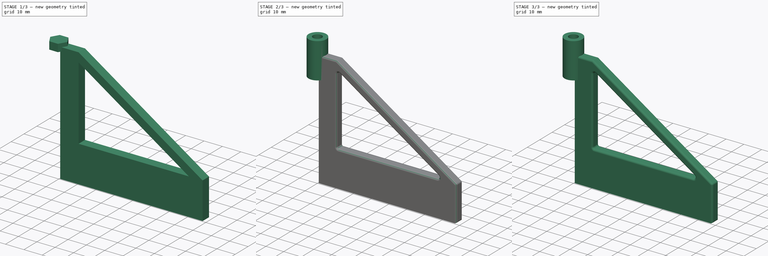
[diagram: build sequence overview — one tinted view per stage of 3, left to right]
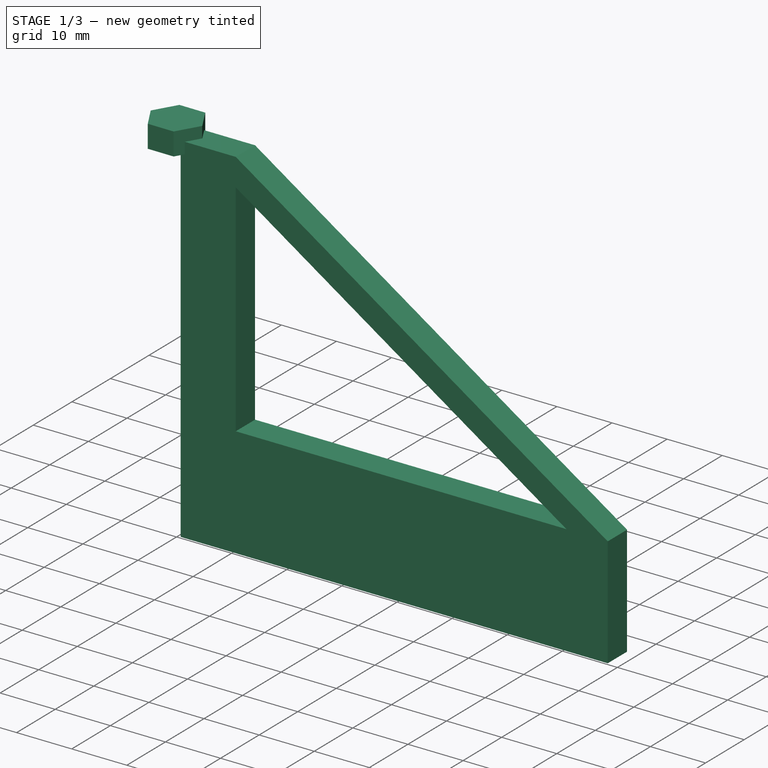
[diagram: stage 1 of 3 — iso view after this stage's code; geometry added in this stage tinted green]
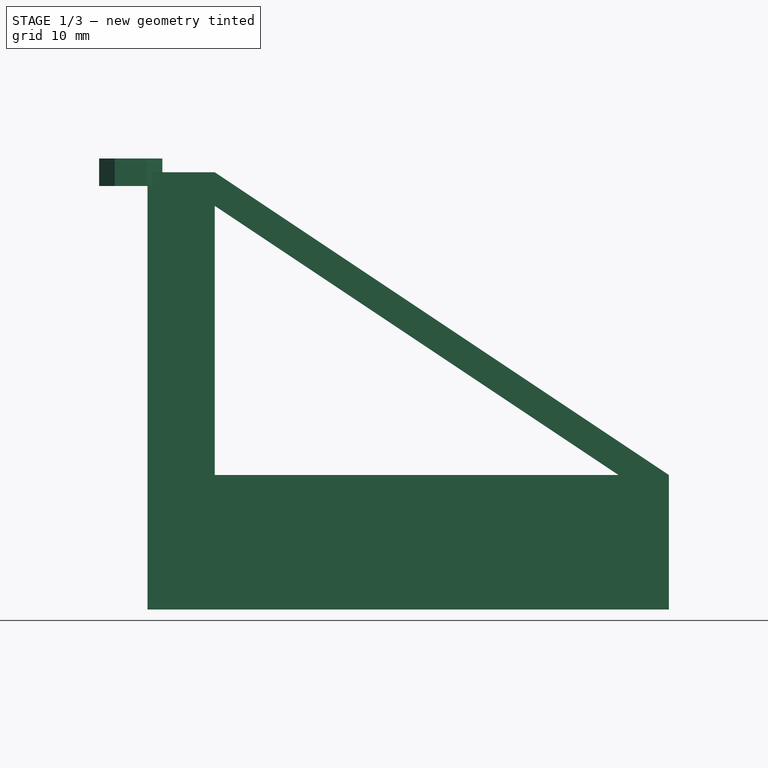
[diagram: stage 1 of 3 — front view after this stage's code; geometry added in this stage tinted green]
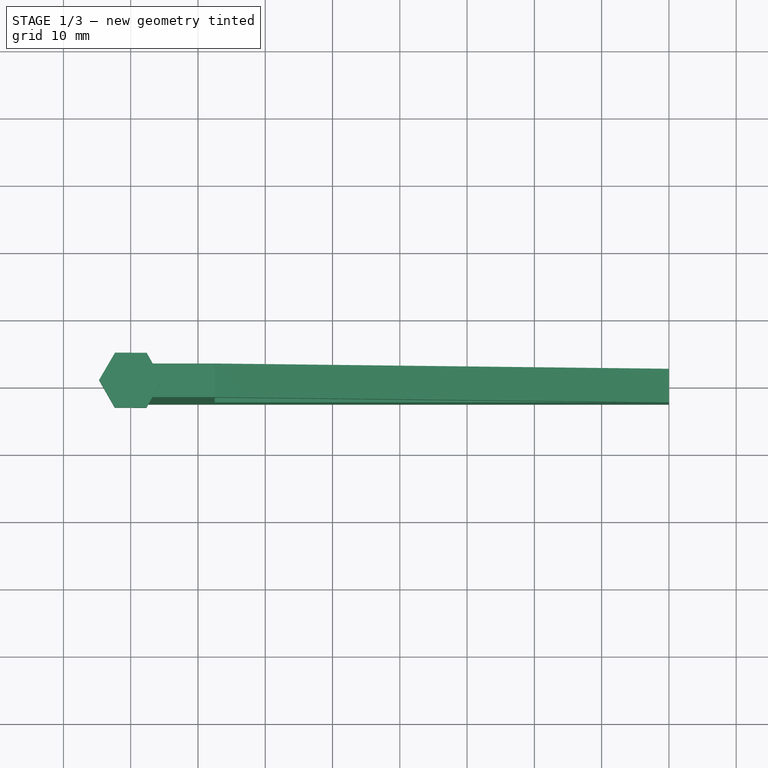
[diagram: stage 1 of 3 — top view after this stage's code; geometry added in this stage tinted green]
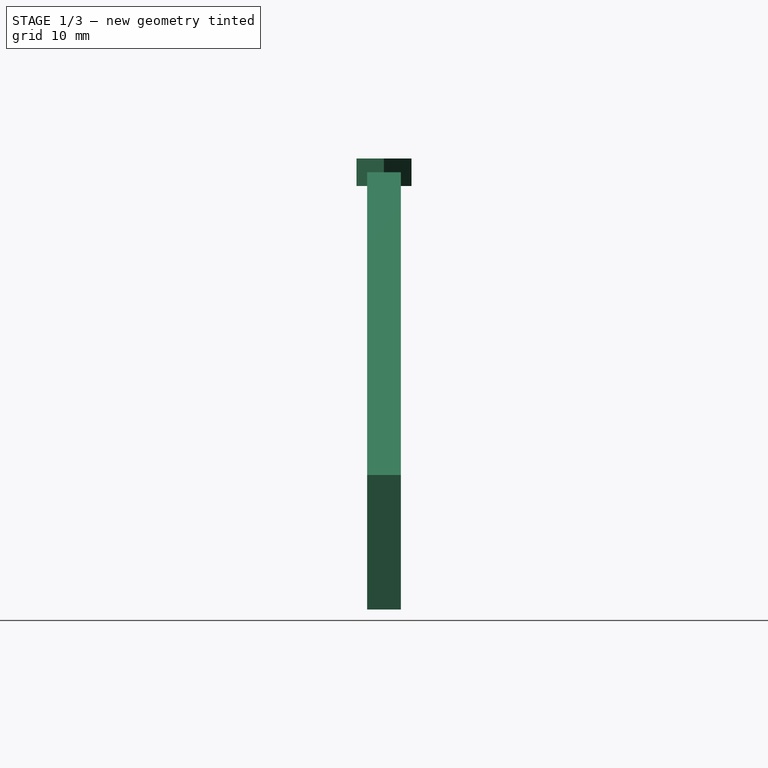
[diagram: stage 1 of 3 — right view after this stage's code; geometry added in this stage tinted green]
FCSTD DOCUMENT  (FreeCAD 0.21R33771 (Git))
Label: SFT-Mk5-Bellcrank Mount
License: Public Domain
LicenseURL: https://en.wikipedia.org/wiki/Public_domain
objects: Sketcher::SketchObject×2, Part::Extrusion×2, PartDesign::CoordinateSystem×1, Part::FeaturePython×1, Part::Fillet×1, Part::MultiFuse×1, Part::Cut×1, PartDesign::Line×1, App::Part×1
note: 10 computed .brp shape members not serialized (recipe doc carries the construction recipe); baked Part::Feature solids carry a one-line shape summary decoded from their .brp

FEATURE [Sketcher::SketchObject] Sketch
  FullyConstrained = true
  MapMode = 5
  Placement = pos=(0,0,0) rot=(1,0,0;1.5708rad)
  Support = -> [XZ_Plane]
  sketch-geometry (8):
    g0: LineSegment StartX=2.5 StartY=65 StartZ=0 EndX=12.5 EndY=65 EndZ=0
    g1: LineSegment StartX=12.5 StartY=65 StartZ=0 EndX=80 EndY=20 EndZ=0
    g2: LineSegment StartX=80 StartY=20 StartZ=0 EndX=80 EndY=0 EndZ=0
    g3: LineSegment StartX=80 StartY=0 StartZ=0 EndX=2.5 EndY=0 EndZ=0
    g4: LineSegment StartX=2.5 StartY=0 StartZ=0 EndX=2.5 EndY=65 EndZ=0
    g5: LineSegment StartX=12.5 StartY=20 StartZ=0 EndX=12.5 EndY=60 EndZ=0
    g6: LineSegment StartX=12.5 StartY=20 StartZ=0 EndX=72.5 EndY=20 EndZ=0
    g7: LineSegment StartX=12.5 StartY=60 StartZ=0 EndX=72.5 EndY=20 EndZ=0
  constraints (24):
    c: Horizontal(g0)
    c: Coincident(g1,g0)
    c: Coincident(g2,g1)
    c: Vertical(g2)
    c: Coincident(g3,g2)
    c: Horizontal(g3)
    c: Coincident(g4,g0)
    c: Vertical(g4)
    c: DistanceY(g4,g4) = 65
    c: DistanceX(g0,g0) = 10
    c: DistanceX(g3,g3) = 77.5
    c: Coincident(g4,g3)
    c: PointOnObject(g2,g-1)
    c: DistanceX(g3) = 2.5
    c: DistanceY(g2,g2) = 20
    c: Vertical(g5)
    c: Coincident(g6,g5)
    c: Horizontal(g6)
    c: Coincident(g7,g5)
    c: Coincident(g7,g6)
    c: DistanceX(g6,g6) = 60
    c: DistanceX(g5) = 12.5
    c: DistanceY(g5) = 20
    c: Parallel(g7,g1)
FEATURE [Part::Extrusion] Extrude
  Base = -> Sketch
  Dir = (0,-1,2e-16)
  DirMode = 2
  FaceMakerClass = Part::FaceMakerBullseye
  LengthFwd = 5
  LengthRev = 0
  Solid = true
  Symmetric = true
FEATURE [Sketcher::SketchObject] Sketch001  label="Nut Pocket Sketch"
  AttachmentOffset = pos=(0,0,65) rot=(0,0,1;0rad)
  FullyConstrained = false
  MapMode = 5
  Placement = pos=(0,0,65) rot=(0,0,1;0rad)
  Support = -> [XY_Plane]
  sketch-geometry (7):
    g0: LineSegment StartX=2.32754 StartY=-4.08321 StartZ=0 EndX=4.69993 EndY=-0.0258977 EndZ=0
    g1: LineSegment StartX=4.69993 StartY=-0.0258977 StartZ=0 EndX=2.37239 EndY=4.05731 EndZ=0
    g2: LineSegment StartX=2.37239 StartY=4.05731 StartZ=0 EndX=-2.32754 EndY=4.08321 EndZ=0
    g3: LineSegment StartX=-2.32754 StartY=4.08321 StartZ=0 EndX=-4.69993 EndY=0.0258977 EndZ=0
    g4: LineSegment StartX=-4.69993 StartY=0.0258977 StartZ=0 EndX=-2.37239 EndY=-4.05731 EndZ=0
    g5: LineSegment StartX=-2.37239 StartY=-4.05731 StartZ=0 EndX=2.32754 EndY=-4.08321 EndZ=0
    g6: Circle CenterX=0 CenterY=0 CenterZ=0 NormalX=0 NormalY=0 NormalZ=1 AngleXU=0 Radius=4.7
  constraints (15):
    c: Coincident(g0,g1)
    c: Coincident(g1,g2)
    c: Coincident(g2,g3)
    c: Coincident(g3,g4)
    c: Coincident(g4,g5)
    c: Coincident(g5,g0)
    c: Equal(g0, g1-g5) x5
    c: PointOnObject(g0,g6)
    c: PointOnObject(g1,g6)
    c: PointOnObject(g2,g6)
    c: PointOnObject(g3,g6)
    c: PointOnObject(g4,g6)
    c: PointOnObject(g5,g6)
    c: Coincident(g6,g-1)
    c: Radius(g6) = 4.7
FEATURE [Part::Extrusion] Extrude001  label="Nut Pocket"
  Base = -> Sketch001
  Dir = (0,0,1)
  DirMode = 2
  FaceMakerClass = Part::FaceMakerBullseye
  LengthFwd = 4.1
  LengthRev = 0
  Solid = true
  Symmetric = true
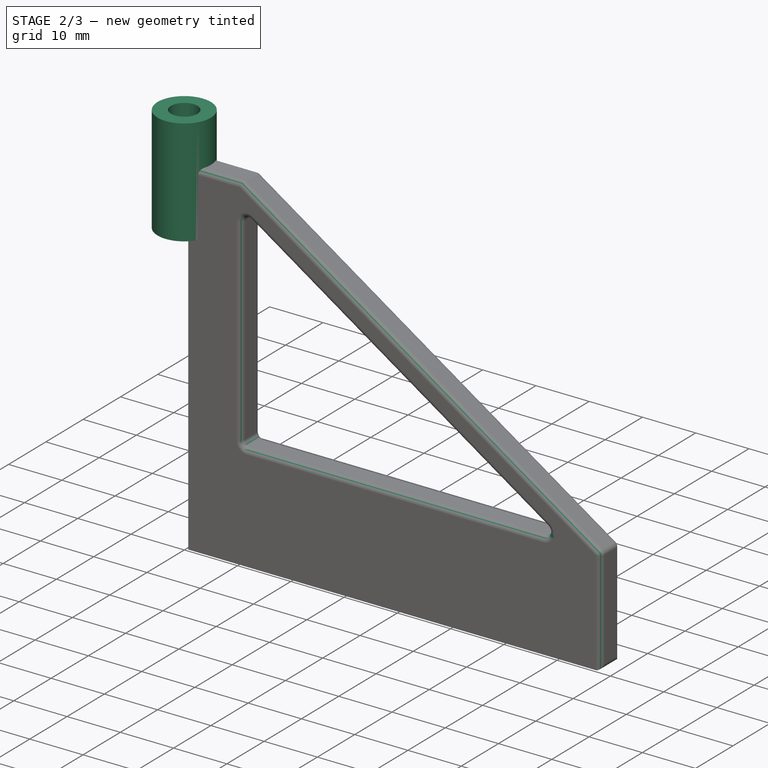
[diagram: stage 2 of 3 — iso view after this stage's code; geometry added in this stage tinted green]
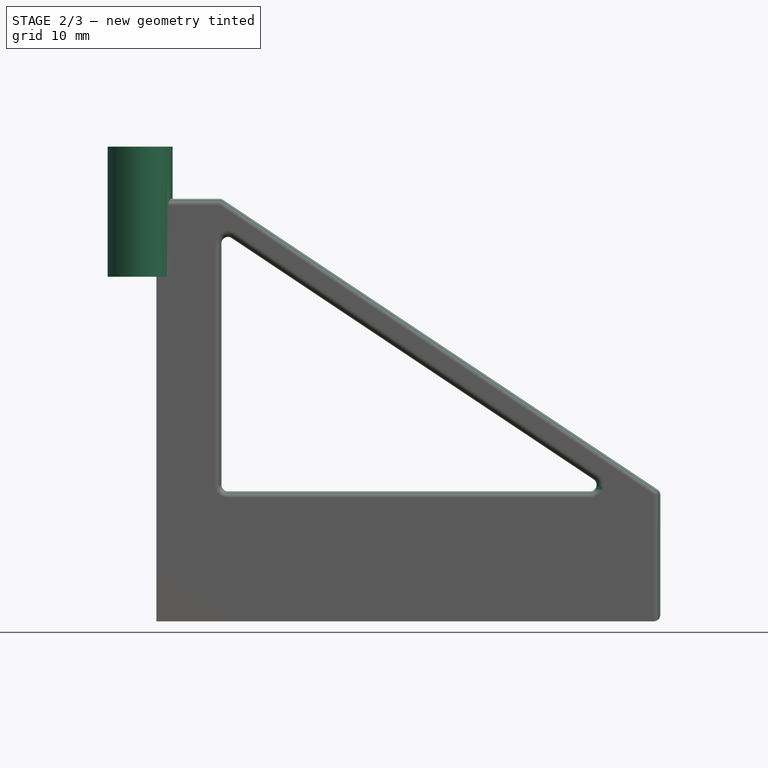
[diagram: stage 2 of 3 — front view after this stage's code; geometry added in this stage tinted green]
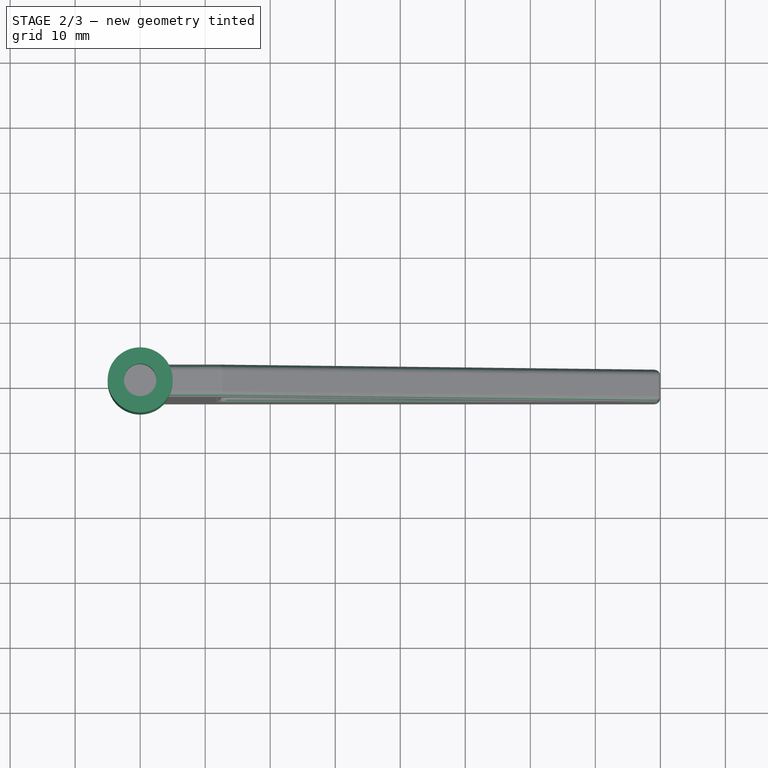
[diagram: stage 2 of 3 — top view after this stage's code; geometry added in this stage tinted green]
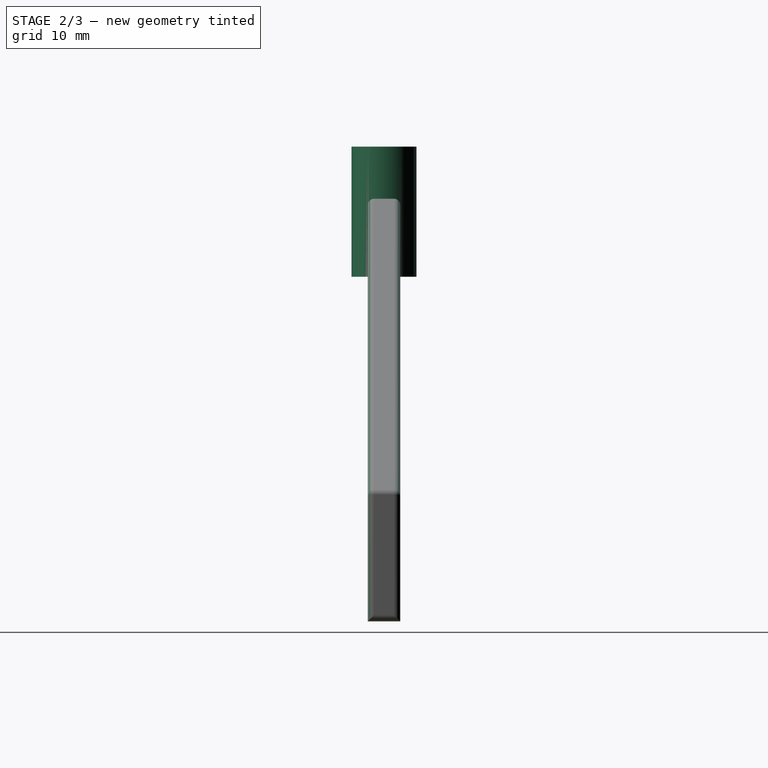
[diagram: stage 2 of 3 — right view after this stage's code; geometry added in this stage tinted green]
FEATURE [PartDesign::CoordinateSystem] LCS_Origin
  AttacherType = Attacher::AttachEngine3D
  MapMode = 2
  Support = -> [X_Axis]
FEATURE [Part::FeaturePython] Tube  # WARN: FeaturePython — macro-defined, semantics opaque (R4)
  AttacherType = Attacher::AttachEngine3D
  Height = 20
  InnerRadius = 2.5
  OuterRadius = 5
  Placement = pos=(0,0,53) rot=(0,0,1;0rad)
FEATURE [Part::Fillet] Fillet
  Base = -> Extrude
  Edges = 19 edges r=1: [Edge1,Edge2,Edge3,Edge4,Edge5,Edge6,Edge7,Edge8,Edge9,Edge10,Edge16,Edge17,Edge18,Edge19,Edge20,Edge21,Edge22,Edge23,Edge24]
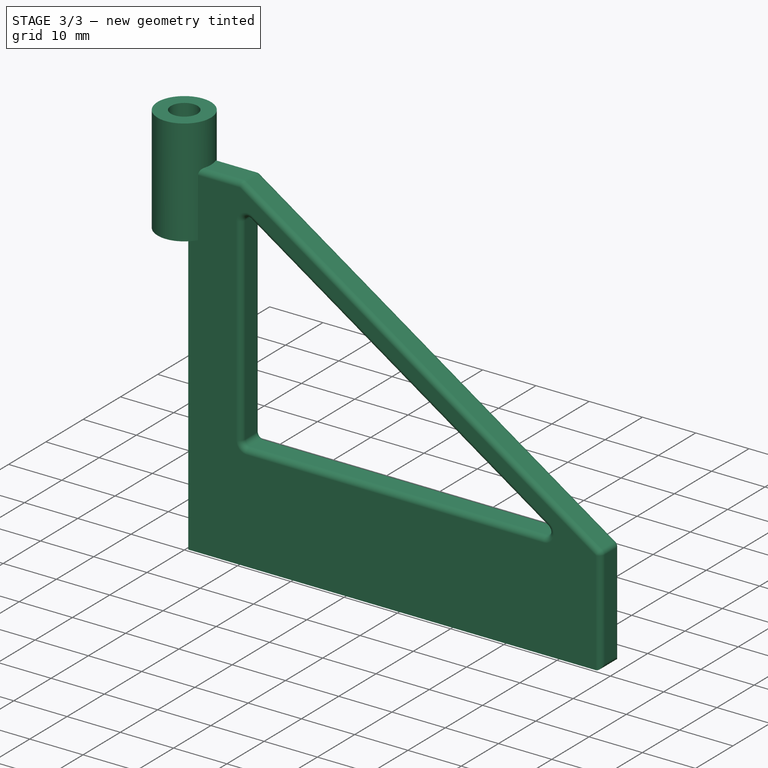
[diagram: stage 3 of 3 — iso view after this stage's code; geometry added in this stage tinted green]
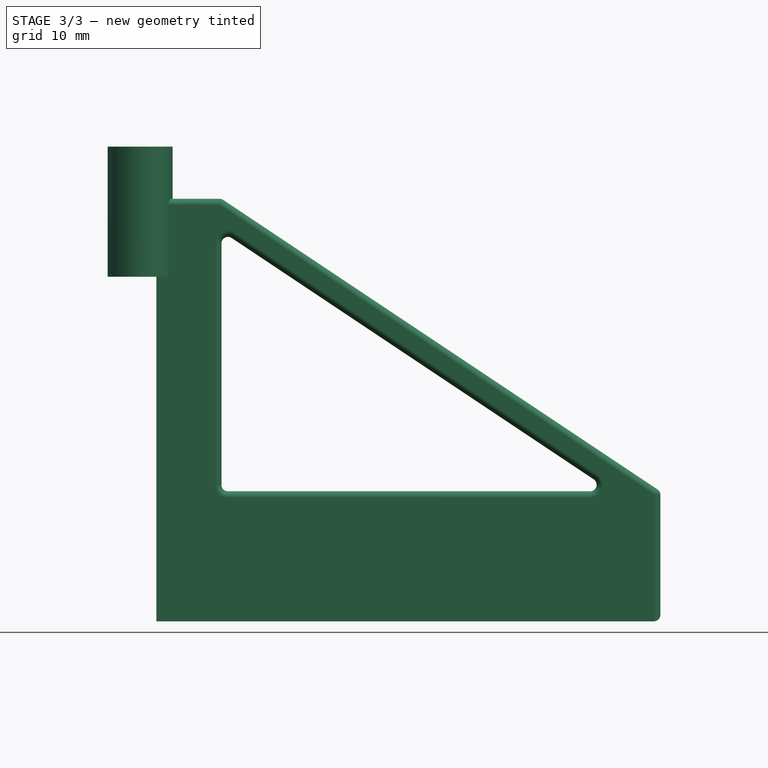
[diagram: stage 3 of 3 — front view after this stage's code; geometry added in this stage tinted green]
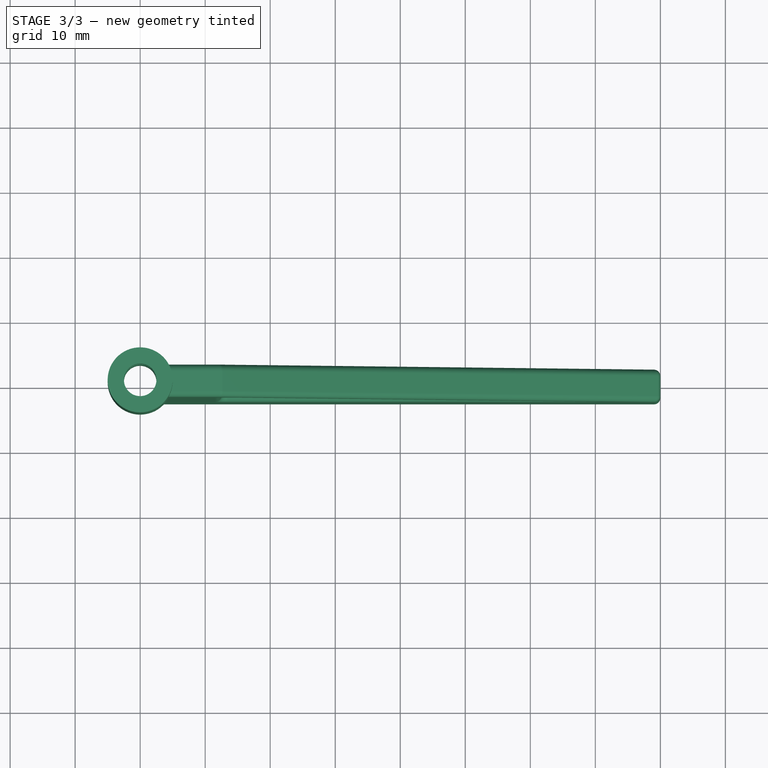
[diagram: stage 3 of 3 — top view after this stage's code; geometry added in this stage tinted green]
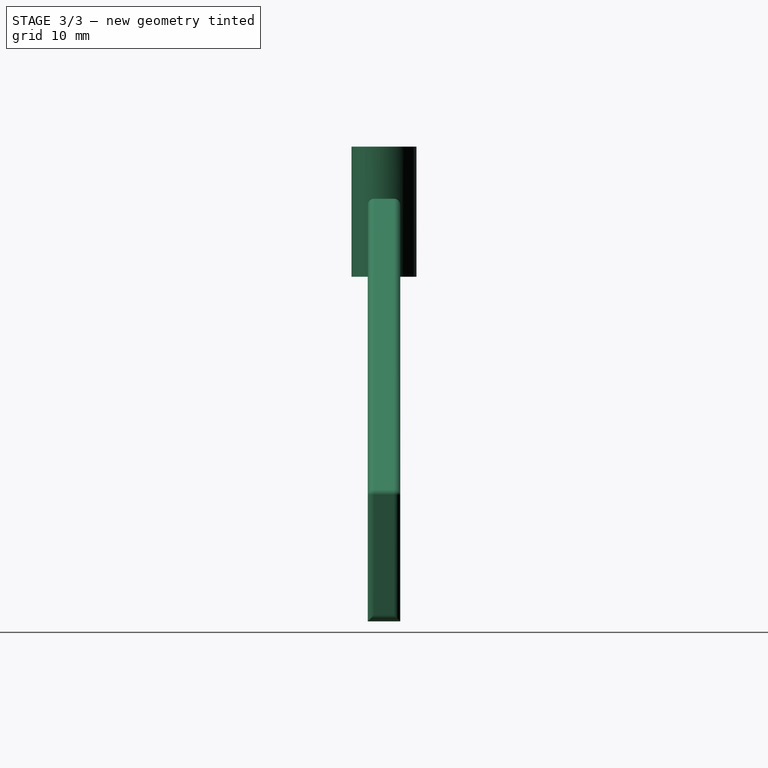
[diagram: stage 3 of 3 — right view after this stage's code; geometry added in this stage tinted green]
FEATURE [Part::MultiFuse] Fusion
  Shapes = -> [Tube,Fillet]
FEATURE [Part::Cut] Cut
  Base = -> Fusion
  Tool = -> Extrude001
FEATURE [PartDesign::Line] HoleAxis_1  label="Bellcrank AP"
  AttacherType = Attacher::AttachEngineLine
  Length = 7.04534
  MapMode = 19
  Placement = pos=(0,0,73) rot=(0,0,1;0rad)
  ResizeMode = 1
  Support = -> [Cut]
FEATURE [App::Part] Bellcrank_Mount  label="Bellcrank Mount"
  Group = -> [LCS_Origin,Extrude,Tube,Extrude001,Fillet,Sketch,Fusion,Sketch001,Cut,HoleAxis_1]
  Origin = -> Origin
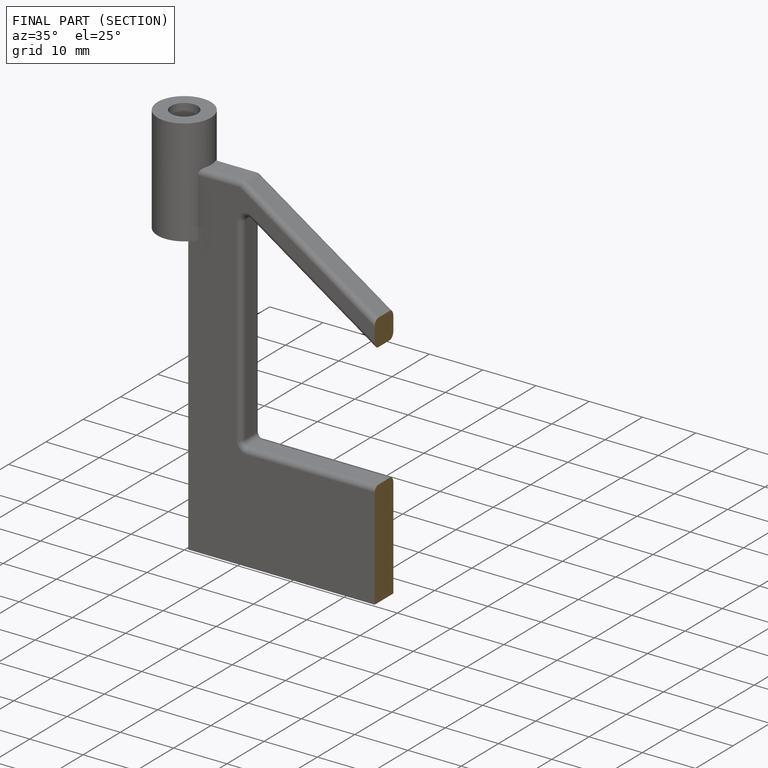
[diagram: finished part — half-section view (interior)]
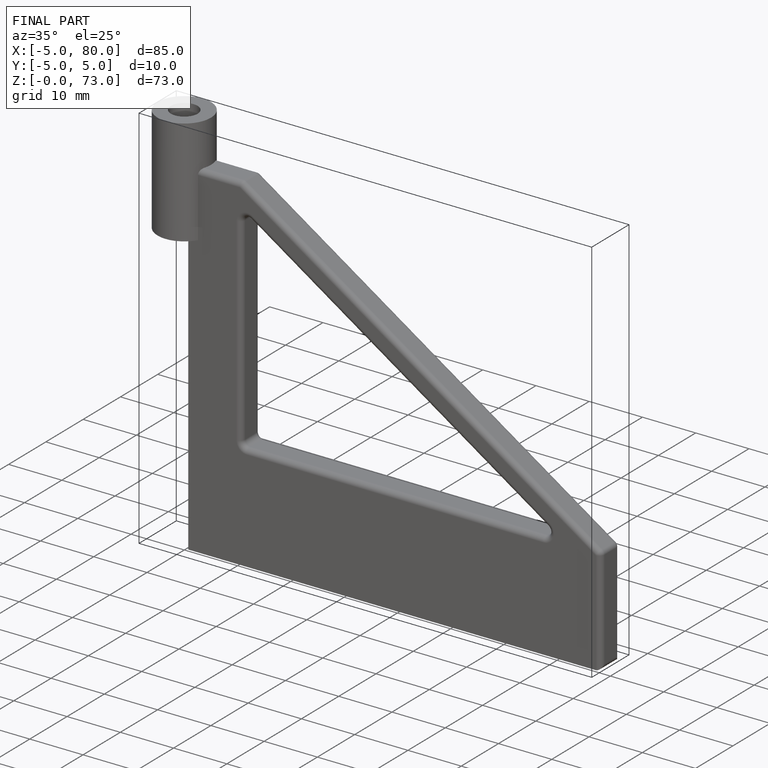
[diagram: finished part — iso view with bounding-box wireframe]
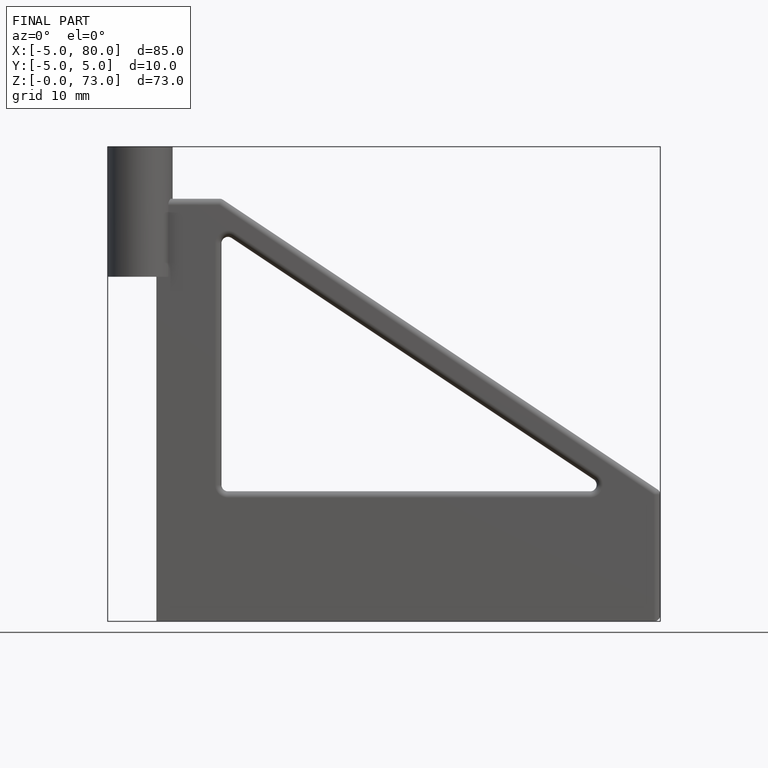
[diagram: finished part — front view with bounding-box wireframe]
